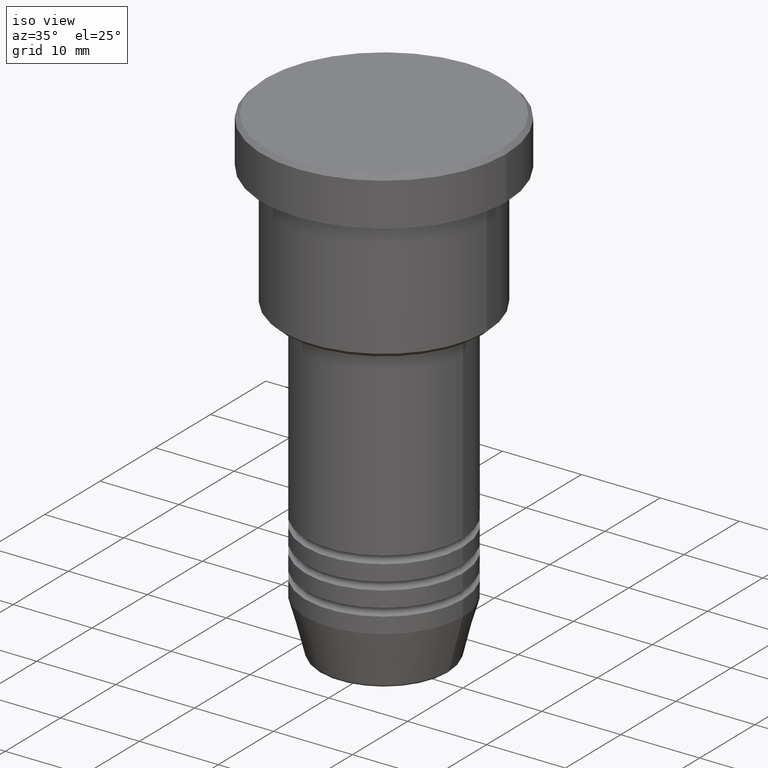
[diagram: clean part render]
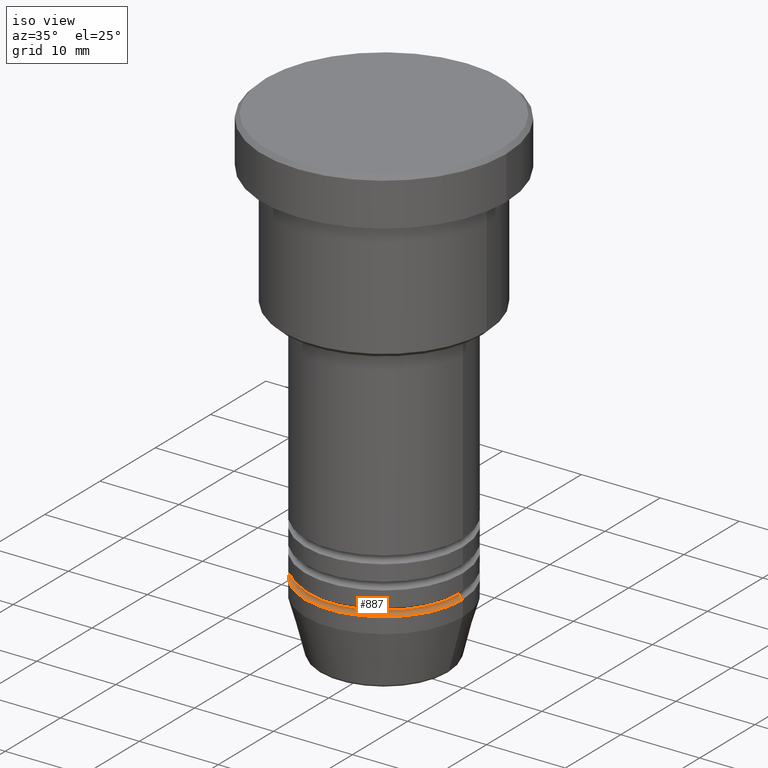
[diagram: same view with one face highlighted and labeled with its STEP entity id]
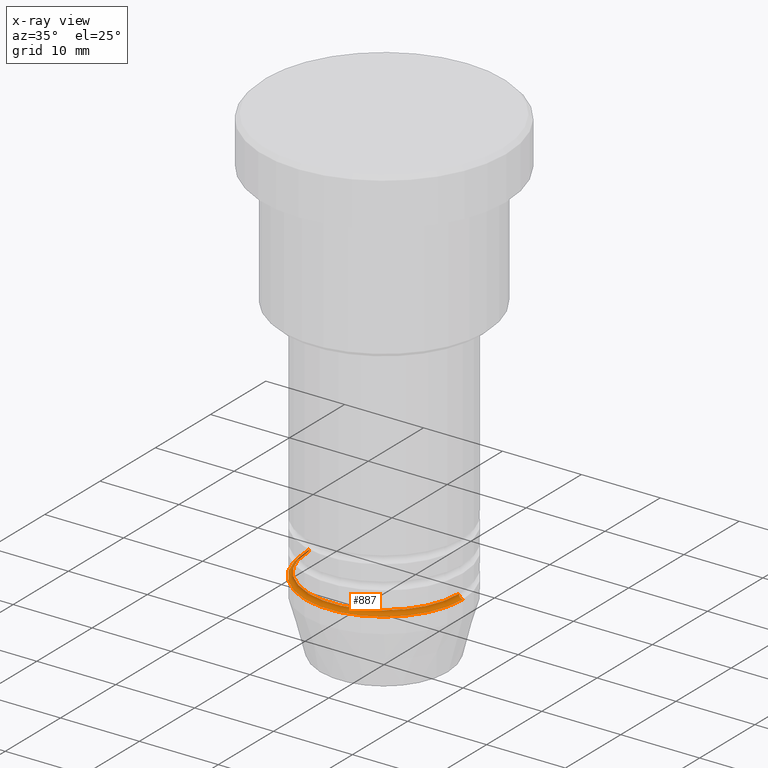
[diagram: x-ray of the same camera — body ghosted, the highlighted face saturated]
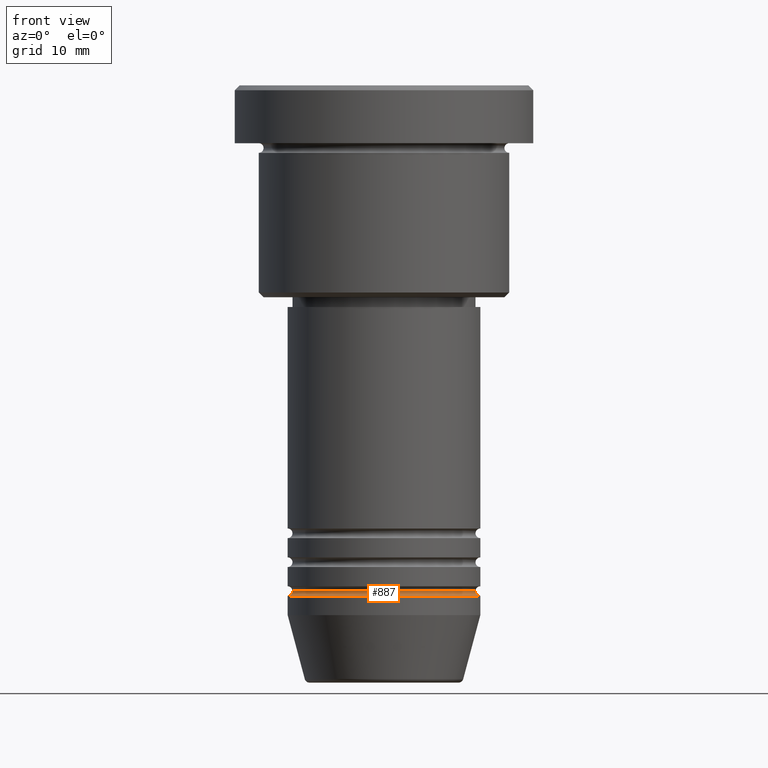
[diagram: same view with one face highlighted and labeled with its STEP entity id]
A machine part, iso view. The second image highlights one B-rep face of the part: STEP entity #887.
The next image is the same camera in x-ray: the body ghosted, the highlighted face saturated — about 2% of this face is hidden behind the body in this view.
A second angle (front view) of the same face is appended — the face is thin or edge-on in the first view.
In plain terms, the highlighted toroidal blend (fillet) surface has major radius 10 mm and minor (blend) radius 0.5 mm.
Its self-contained STEP definition (entity closure, byte-faithful):
#8 = DIRECTION ( 'NONE',  ( -0.000000000000000000, -0.000000000000000000, 1.000000000000000000 ) ) ;
#15 = ORIENTED_EDGE ( 'NONE', *, *, #371, .F. ) ;
#45 = DIRECTION ( 'NONE',  ( -1.000000000000000000, 1.224646799147353454E-16, 0.000000000000000000 ) ) ;
#53 = CIRCLE ( 'NONE', #283, 0.5000000000000004441 ) ;
#120 = CARTESIAN_POINT ( 'NONE',  ( 10.00000000000000178, 0.000000000000000000, -52.49999999999999289 ) ) ;
#124 = ORIENTED_EDGE ( 'NONE', *, *, #902, .F. ) ;
#210 = DIRECTION ( 'NONE',  ( 0.000000000000000000, 0.000000000000000000, -1.000000000000000000 ) ) ;
#212 = VERTEX_POINT ( 'NONE', #842 ) ;
#217 = DIRECTION ( 'NONE',  ( 1.224646799147353207E-16, 1.000000000000000000, 0.000000000000000000 ) ) ;
#267 = CARTESIAN_POINT ( 'NONE',  ( -10.00000000000000000, 1.224646799147353256E-15, -53.00000000000000000 ) ) ;
#283 = AXIS2_PLACEMENT_3D ( 'NONE', #120, #303, #210 ) ;
#285 = CIRCLE ( 'NONE', #302, 0.5000000000000004441 ) ;
#302 = AXIS2_PLACEMENT_3D ( 'NONE', #587, #217, #45 ) ;
#303 = DIRECTION ( 'NONE',  ( 0.000000000000000000, -1.000000000000000000, 0.000000000000000000 ) ) ;
#320 = AXIS2_PLACEMENT_3D ( 'NONE', #387, #665, #572 ) ;
#338 = ORIENTED_EDGE ( 'NONE', *, *, #1175, .T. ) ;
#370 = DIRECTION ( 'NONE',  ( 1.000000000000000000, 0.000000000000000000, 0.000000000000000000 ) ) ;
#371 = EDGE_CURVE ( 'NONE', #212, #372, #666, .T. ) ;
#372 = VERTEX_POINT ( 'NONE', #996 ) ;
#387 = CARTESIAN_POINT ( 'NONE',  ( 0.000000000000000000, 0.000000000000000000, -52.49999999999999289 ) ) ;
#459 = CARTESIAN_POINT ( 'NONE',  ( 10.00000000000000000, 0.000000000000000000, -53.00000000000000000 ) ) ;
#466 = CARTESIAN_POINT ( 'NONE',  ( 0.000000000000000000, 0.000000000000000000, -52.49999999999999289 ) ) ;
#488 = FACE_OUTER_BOUND ( 'NONE', #577, .T. ) ;
#572 = DIRECTION ( 'NONE',  ( 1.000000000000000000, 0.000000000000000000, 0.000000000000000000 ) ) ;
#577 = EDGE_LOOP ( 'NONE', ( #15, #338, #919, #124 ) ) ;
#587 = CARTESIAN_POINT ( 'NONE',  ( -10.00000000000000178, 1.224646799147353454E-15, -52.49999999999999289 ) ) ;
#665 = DIRECTION ( 'NONE',  ( -0.000000000000000000, -0.000000000000000000, 1.000000000000000000 ) ) ;
#666 = CIRCLE ( 'NONE', #782, 9.500000000000001776 ) ;
#713 = CIRCLE ( 'NONE', #729, 10.00000000000000000 ) ;
#716 = VERTEX_POINT ( 'NONE', #267 ) ;
#729 = AXIS2_PLACEMENT_3D ( 'NONE', #1007, #8, #370 ) ;
#782 = AXIS2_PLACEMENT_3D ( 'NONE', #466, #833, #988 ) ;
#833 = DIRECTION ( 'NONE',  ( -0.000000000000000000, -0.000000000000000000, 1.000000000000000000 ) ) ;
#842 = CARTESIAN_POINT ( 'NONE',  ( -9.500000000000001776, 1.194030629168669469E-15, -52.49999999999999289 ) ) ;
#887 = ADVANCED_FACE ( 'NONE', ( #488 ), #934, .F. ) ;
#902 = EDGE_CURVE ( 'NONE', #372, #1058, #53, .T. ) ;
#919 = ORIENTED_EDGE ( 'NONE', *, *, #1148, .T. ) ;
#934 = TOROIDAL_SURFACE ( 'NONE', #320, 10.00000000000000178, 0.5000000000000000000 ) ;
#988 = DIRECTION ( 'NONE',  ( 1.000000000000000000, 0.000000000000000000, 0.000000000000000000 ) ) ;
#996 = CARTESIAN_POINT ( 'NONE',  ( 9.500000000000001776, 0.000000000000000000, -52.49999999999999289 ) ) ;
#1007 = CARTESIAN_POINT ( 'NONE',  ( 0.000000000000000000, 0.000000000000000000, -53.00000000000000000 ) ) ;
#1058 = VERTEX_POINT ( 'NONE', #459 ) ;
#1148 = EDGE_CURVE ( 'NONE', #716, #1058, #713, .T. ) ;
#1175 = EDGE_CURVE ( 'NONE', #212, #716, #285, .T. ) ;